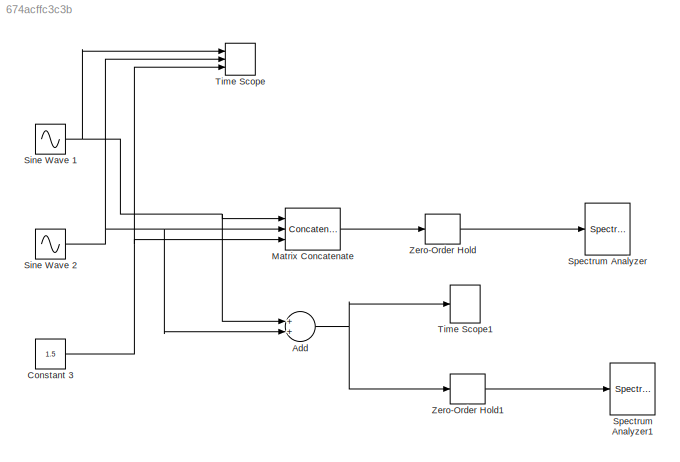
MODEL slx_674acffc3c3b
KIND model
CONFIG AbsTol = auto
CONFIG FixedStep = auto
CONFIG MaxStep = auto
CONFIG MinStep = auto
CONFIG RelTol = 1e-3
CONFIG SampleTimeConstraint = Unconstrained
CONFIG Solver = ode45
CONFIG SolverMode = Auto
CONFIG SolverName = ode45
CONFIG StartTime = 0.0
CONFIG StopTime = 8
BLOCK [Sum] Add
  InputSameDT = off
  OutDataTypeStr = Inherit: Inherit via internal rule
  Ports = [2, 1]
  SaturateOnIntegerOverflow = off
BLOCK [Constant] Constant 3
  Value = 1.5
BLOCK [Concatenate] Matrix Concatenate
  ConcatenateDimension = 2
  Mode = Multidimensional array
  NumInputs = 3
  Ports = [3, 1]
BLOCK [Sin] Sine Wave 1
  Amplitude = 1.5
  Frequency = 2*pi*30
  Ports = [0, 1]
  SampleTime = 0.0025
BLOCK [Sin] Sine Wave 2
  Amplitude = 3
  Frequency = 2*pi*10
  Ports = [0, 1]
  SampleTime = 0.0025
BLOCK [SpectrumAnalyzer] Spectrum Analyzer
  Ports = [1]
  ScopeSpecificationString = spbscopes.SpectrumAnalyzerBlockCfg('CurrentConfiguration', extmgr.ConfigurationSet(extmgr.Configuration('Core','General UI',true),extmgr.Configuration('Core','Source UI',true),extmgr.Configuration('Sources','WiredSimulink',true),extmgr.Configuration('Visuals','Spectrum',true,'AxesProperties',struct('Color',[0 0 0],'XColor',[0.686274509803922 0.686274509803922 0.686274509803922],'YColor',[0.6862745...<+6111ch>
BLOCK [SpectrumAnalyzer] Spectrum Analyzer1
  Ports = [1]
  ScopeSpecificationString = spbscopes.SpectrumAnalyzerBlockCfg('CurrentConfiguration', extmgr.ConfigurationSet(extmgr.Configuration('Core','General UI',true),extmgr.Configuration('Core','Source UI',true),extmgr.Configuration('Sources','WiredSimulink',true),extmgr.Configuration('Visuals','Spectrum',true,'AxesProperties',struct('Color',[0 0 0],'XColor',[0.686274509803922 0.686274509803922 0.686274509803922],'YColor',[0.6862745...<+6130ch>
BLOCK [TimeScope] Time Scope
  DefaultConfigurationName = spbscopes.TimeScopeBlockCfg
  NumInputPorts = 3
  Ports = [3]
  ScopeSpecificationString = spbscopes.TimeScopeBlockCfg('CurrentConfiguration', extmgr.ConfigurationSet(extmgr.Configuration('Core','General UI',true),extmgr.Configuration('Core','Source UI',true),extmgr.Configuration('Sources','WiredSimulink',true),extmgr.Configuration('Visuals','Time Domain',true,'DisplayPropertyDefaults',struct('MinYLimReal','-2.9843','MaxYLimReal','1.69642','YLabelReal','Amplitude','MinYLimMag','0','MaxY...<+1413ch>
  UserDataPersistent = on
BLOCK [TimeScope] Time Scope1
  DefaultConfigurationName = spbscopes.TimeScopeBlockCfg
  NumInputPorts = 1
  Ports = [1]
  ScopeSpecificationString = spbscopes.TimeScopeBlockCfg('CurrentConfiguration', extmgr.ConfigurationSet(extmgr.Configuration('Core','General UI',true),extmgr.Configuration('Core','Source UI',true),extmgr.Configuration('Sources','WiredSimulink',true,'DataLoggingVariableName','ScopeData1'),extmgr.Configuration('Visuals','Time Domain',true,'DisplayPropertyDefaults',struct('MinYLimReal','-3.3884','MaxYLimReal','3.32438','YLabelR...<+1415ch>
  UserDataPersistent = on
BLOCK [ZeroOrderHold] Zero-Order Hold
  SampleTime = 0.0025
BLOCK [ZeroOrderHold] Zero-Order Hold1
  SampleTime = 0.0025
NET Add:1 -> Time Scope1:1, Zero-Order Hold1:1
NET Constant 3:1 -> Matrix Concatenate:3, Time Scope:3
LINE Matrix Concatenate:1 -> Zero-Order Hold:1
NET Sine Wave 1:1 -> Add:1, Matrix Concatenate:1, Time Scope:1
NET Sine Wave 2:1 -> Add:2, Matrix Concatenate:2, Time Scope:2
LINE Zero-Order Hold1:1 -> Spectrum Analyzer1:1
LINE Zero-Order Hold:1 -> Spectrum Analyzer:1
note: NET lines group one-source signal fan-out (src -> all destinations, sorted); 1:1 wires keep LINE
